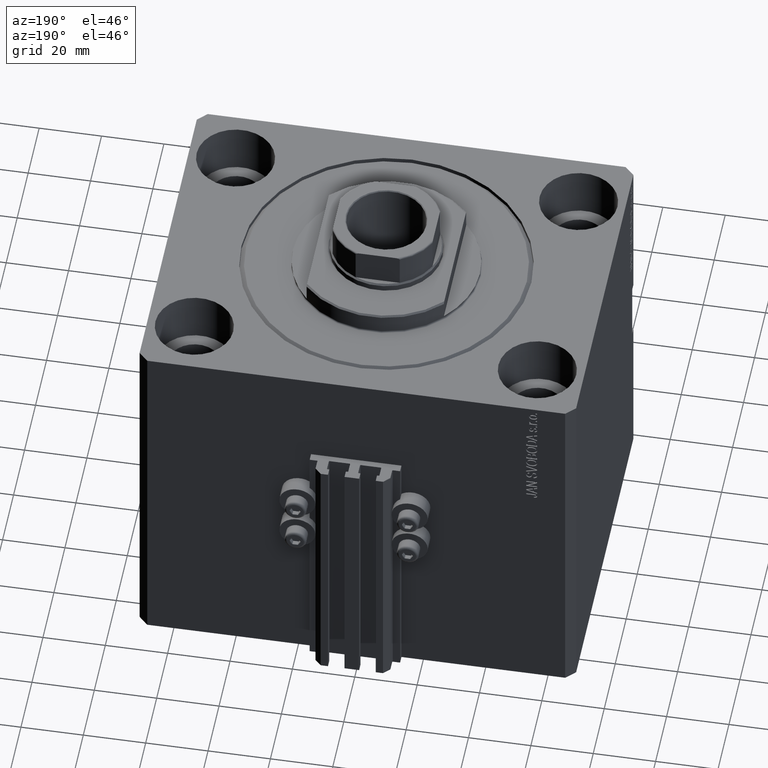
[diagram: clean part render]
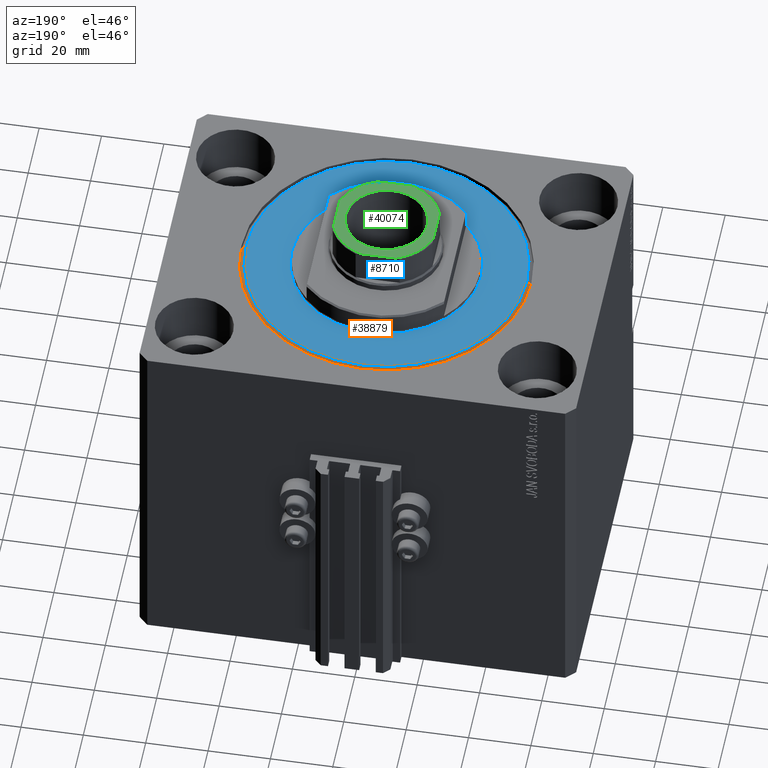
[diagram: same view with three faces highlighted in distinct colors, each labeled with its STEP entity id]
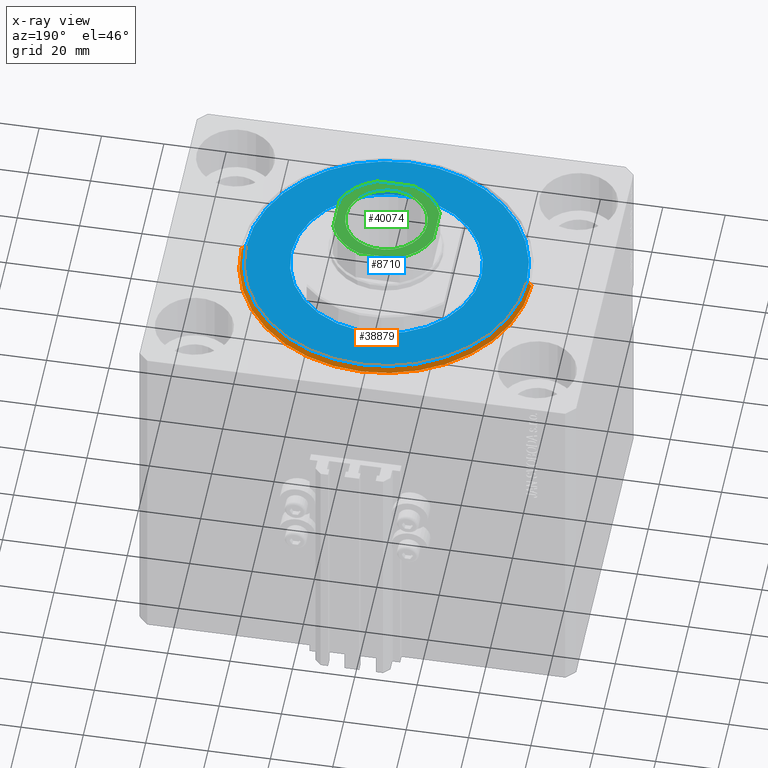
[diagram: x-ray of the same camera — body ghosted, the three highlighted faces saturated]
A machine part, auxiliary view with three faces highlighted in distinct colors.
The next image is the same camera in x-ray (body ghosted, the three faces saturated) — at least one of them is partly hidden behind the body in this view.
Their STEP definitions:

[orange] entity #38879 — the highlighted conical surface has half-angle 45 deg.
#905 = LINE ( 'NONE', #30507, #6513 ) ;
#1716 = DIRECTION ( 'NONE',  ( -0.000000000000000000, -0.000000000000000000, -1.000000000000000000 ) ) ;
#2038 = EDGE_CURVE ( 'NONE', #32870, #5762, #33444, .T. ) ;
#2782 = ORIENTED_EDGE ( 'NONE', *, *, #18228, .F. ) ;
#3310 = CARTESIAN_POINT ( 'NONE',  ( 45.00000000000000000, 0.000000000000000000, 0.000000000000000000 ) ) ;
#3657 = CARTESIAN_POINT ( 'NONE',  ( 0.000000000000000000, 0.000000000000000000, 1.499999999999980460 ) ) ;
#3722 = EDGE_CURVE ( 'NONE', #5762, #9572, #905, .T. ) ;
#4486 = ORIENTED_EDGE ( 'NONE', *, *, #44856, .T. ) ;
#5762 = VERTEX_POINT ( 'NONE', #3310 ) ;
#5881 = CARTESIAN_POINT ( 'NONE',  ( 0.000000000000000000, 0.000000000000000000, 0.000000000000000000 ) ) ;
#6513 = VECTOR ( 'NONE', #19411, 1000.000000000000114 ) ;
#7826 = DIRECTION ( 'NONE',  ( -0.000000000000000000, -0.000000000000000000, 1.000000000000000000 ) ) ;
#8217 = AXIS2_PLACEMENT_3D ( 'NONE', #5881, #1716, #20945 ) ;
#9572 = VERTEX_POINT ( 'NONE', #15655 ) ;
#10188 = FACE_OUTER_BOUND ( 'NONE', #32506, .T. ) ;
#10656 = CARTESIAN_POINT ( 'NONE',  ( -46.50000000000000000, 5.694607616035192278E-15, 1.499999999999980460 ) ) ;
#14849 = DIRECTION ( 'NONE',  ( 1.000000000000000000, 0.000000000000000000, 0.000000000000000000 ) ) ;
#15655 = CARTESIAN_POINT ( 'NONE',  ( 46.50000000000000000, 5.694607616035192278E-15, 1.499999999999980460 ) ) ;
#17582 = DIRECTION ( 'NONE',  ( -0.000000000000000000, -0.000000000000000000, 1.000000000000000000 ) ) ;
#18054 = DIRECTION ( 'NONE',  ( -0.7071067811865524577, 8.659560562354993255E-17, 0.7071067811865425767 ) ) ;
#18228 = EDGE_CURVE ( 'NONE', #9572, #18738, #42309, .T. ) ;
#18738 = VERTEX_POINT ( 'NONE', #21562 ) ;
#19411 = DIRECTION ( 'NONE',  ( 0.7071067811865524577, 0.000000000000000000, 0.7071067811865425767 ) ) ;
#20945 = DIRECTION ( 'NONE',  ( 1.000000000000000000, 0.000000000000000000, 0.000000000000000000 ) ) ;
#21510 = LINE ( 'NONE', #10656, #46586 ) ;
#21562 = CARTESIAN_POINT ( 'NONE',  ( -46.50000000000000000, 0.000000000000000000, 1.499999999999980460 ) ) ;
#27647 = ORIENTED_EDGE ( 'NONE', *, *, #3722, .F. ) ;
#30507 = CARTESIAN_POINT ( 'NONE',  ( 46.50000000000000000, 0.000000000000000000, 1.499999999999980460 ) ) ;
#31723 = ORIENTED_EDGE ( 'NONE', *, *, #2038, .F. ) ;
#32506 = EDGE_LOOP ( 'NONE', ( #31723, #4486, #2782, #27647 ) ) ;
#32868 = CARTESIAN_POINT ( 'NONE',  ( 0.000000000000000000, 0.000000000000000000, 1.499999999999980460 ) ) ;
#32870 = VERTEX_POINT ( 'NONE', #45886 ) ;
#33151 = CONICAL_SURFACE ( 'NONE', #48015, 46.50000000000000000, 0.7853981633974552734 ) ;
#33444 = CIRCLE ( 'NONE', #8217, 45.00000000000000000 ) ;
#33743 = DIRECTION ( 'NONE',  ( 1.000000000000000000, 0.000000000000000000, 0.000000000000000000 ) ) ;
#38879 = ADVANCED_FACE ( 'NONE', ( #10188 ), #33151, .T. ) ;
#42309 = CIRCLE ( 'NONE', #43916, 46.50000000000000000 ) ;
#43916 = AXIS2_PLACEMENT_3D ( 'NONE', #3657, #7826, #33743 ) ;
#44856 = EDGE_CURVE ( 'NONE', #32870, #18738, #21510, .T. ) ;
#45886 = CARTESIAN_POINT ( 'NONE',  ( -45.00000000000000000, 5.602759106099140917E-15, 0.000000000000000000 ) ) ;
#46586 = VECTOR ( 'NONE', #18054, 1000.000000000000114 ) ;
#48015 = AXIS2_PLACEMENT_3D ( 'NONE', #32868, #17582, #14849 ) ;

[blue] entity #8710 — the highlighted planar face has unit normal (0, 0, -1).
#957 = CARTESIAN_POINT ( 'NONE',  ( 0.000000000000000000, 0.000000000000000000, 0.000000000000000000 ) ) ;
#1082 = AXIS2_PLACEMENT_3D ( 'NONE', #33672, #30687, #11233 ) ;
#1192 = EDGE_CURVE ( 'NONE', #16731, #24366, #22359, .T. ) ;
#1716 = DIRECTION ( 'NONE',  ( -0.000000000000000000, -0.000000000000000000, -1.000000000000000000 ) ) ;
#2038 = EDGE_CURVE ( 'NONE', #32870, #5762, #33444, .T. ) ;
#2425 = EDGE_LOOP ( 'NONE', ( #4416, #16897 ) ) ;
#3310 = CARTESIAN_POINT ( 'NONE',  ( 45.00000000000000000, 0.000000000000000000, 0.000000000000000000 ) ) ;
#3574 = DIRECTION ( 'NONE',  ( 1.000000000000000000, 0.000000000000000000, 0.000000000000000000 ) ) ;
#4416 = ORIENTED_EDGE ( 'NONE', *, *, #38634, .T. ) ;
#5762 = VERTEX_POINT ( 'NONE', #3310 ) ;
#5881 = CARTESIAN_POINT ( 'NONE',  ( 0.000000000000000000, 0.000000000000000000, 0.000000000000000000 ) ) ;
#6119 = CIRCLE ( 'NONE', #36077, 45.00000000000000000 ) ;
#7198 = CARTESIAN_POINT ( 'NONE',  ( 0.000000000000000000, 0.000000000000000000, 0.000000000000000000 ) ) ;
#8217 = AXIS2_PLACEMENT_3D ( 'NONE', #5881, #1716, #20945 ) ;
#8710 = ADVANCED_FACE ( 'NONE', ( #19045, #14610 ), #41006, .F. ) ;
#11233 = DIRECTION ( 'NONE',  ( 1.000000000000000000, 0.000000000000000000, 0.000000000000000000 ) ) ;
#12923 = EDGE_LOOP ( 'NONE', ( #16552, #39184 ) ) ;
#14610 = FACE_OUTER_BOUND ( 'NONE', #12923, .T. ) ;
#16552 = ORIENTED_EDGE ( 'NONE', *, *, #31461, .T. ) ;
#16731 = VERTEX_POINT ( 'NONE', #41099 ) ;
#16897 = ORIENTED_EDGE ( 'NONE', *, *, #1192, .T. ) ;
#19045 = FACE_BOUND ( 'NONE', #2425, .T. ) ;
#19466 = DIRECTION ( 'NONE',  ( 1.000000000000000000, 0.000000000000000000, 0.000000000000000000 ) ) ;
#20945 = DIRECTION ( 'NONE',  ( 1.000000000000000000, 0.000000000000000000, 0.000000000000000000 ) ) ;
#22088 = CIRCLE ( 'NONE', #29976, 30.50000000000000000 ) ;
#22256 = DIRECTION ( 'NONE',  ( 1.000000000000000000, 0.000000000000000000, -0.000000000000000000 ) ) ;
#22359 = CIRCLE ( 'NONE', #1082, 30.50000000000000000 ) ;
#24366 = VERTEX_POINT ( 'NONE', #39497 ) ;
#29976 = AXIS2_PLACEMENT_3D ( 'NONE', #33178, #33416, #3574 ) ;
#30687 = DIRECTION ( 'NONE',  ( 0.000000000000000000, 0.000000000000000000, 1.000000000000000000 ) ) ;
#31461 = EDGE_CURVE ( 'NONE', #5762, #32870, #6119, .T. ) ;
#32870 = VERTEX_POINT ( 'NONE', #45886 ) ;
#33178 = CARTESIAN_POINT ( 'NONE',  ( 0.000000000000000000, 0.000000000000000000, 0.000000000000000000 ) ) ;
#33416 = DIRECTION ( 'NONE',  ( 0.000000000000000000, 0.000000000000000000, 1.000000000000000000 ) ) ;
#33444 = CIRCLE ( 'NONE', #8217, 45.00000000000000000 ) ;
#33672 = CARTESIAN_POINT ( 'NONE',  ( 0.000000000000000000, 0.000000000000000000, 0.000000000000000000 ) ) ;
#36077 = AXIS2_PLACEMENT_3D ( 'NONE', #957, #42160, #19466 ) ;
#36829 = DIRECTION ( 'NONE',  ( 0.000000000000000000, 0.000000000000000000, 1.000000000000000000 ) ) ;
#38634 = EDGE_CURVE ( 'NONE', #24366, #16731, #22088, .T. ) ;
#39184 = ORIENTED_EDGE ( 'NONE', *, *, #2038, .T. ) ;
#39497 = CARTESIAN_POINT ( 'NONE',  ( 30.50000000000000000, 0.000000000000000000, 2.168404344971008868E-16 ) ) ;
#41006 = PLANE ( 'NONE',  #45263 ) ;
#41099 = CARTESIAN_POINT ( 'NONE',  ( -30.50000000000000000, 3.735172737399427541E-15, 2.168404344971008868E-16 ) ) ;
#42160 = DIRECTION ( 'NONE',  ( -0.000000000000000000, -0.000000000000000000, -1.000000000000000000 ) ) ;
#45263 = AXIS2_PLACEMENT_3D ( 'NONE', #7198, #36829, #22256 ) ;
#45886 = CARTESIAN_POINT ( 'NONE',  ( -45.00000000000000000, 5.602759106099140917E-15, 0.000000000000000000 ) ) ;

[green] entity #40074 — the highlighted planar face has unit normal (0, 0, 1).
#378 = ORIENTED_EDGE ( 'NONE', *, *, #29664, .T. ) ;
#801 = CARTESIAN_POINT ( 'NONE',  ( 5.744562646538024175, -16.00000000000000355, 115.0000000000000000 ) ) ;
#881 = VECTOR ( 'NONE', #38668, 1000.000000000000000 ) ;
#1155 = AXIS2_PLACEMENT_3D ( 'NONE', #38386, #35166, #27262 ) ;
#2109 = EDGE_CURVE ( 'NONE', #11751, #43261, #23971, .T. ) ;
#3411 = CARTESIAN_POINT ( 'NONE',  ( 0.000000000000000000, 0.000000000000000000, 115.0000000000000000 ) ) ;
#3655 = DIRECTION ( 'NONE',  ( 1.000000000000000000, 0.000000000000000000, 0.000000000000000000 ) ) ;
#3855 = VERTEX_POINT ( 'NONE', #43756 ) ;
#4501 = PLANE ( 'NONE',  #40954 ) ;
#5221 = ORIENTED_EDGE ( 'NONE', *, *, #11677, .T. ) ;
#5372 = CARTESIAN_POINT ( 'NONE',  ( 0.000000000000000000, 0.000000000000000000, 115.0000000000000000 ) ) ;
#6019 = DIRECTION ( 'NONE',  ( 1.084202172485504434E-16, -1.000000000000000000, 0.000000000000000000 ) ) ;
#6353 = DIRECTION ( 'NONE',  ( 0.000000000000000000, -0.000000000000000000, -1.000000000000000000 ) ) ;
#6451 = DIRECTION ( 'NONE',  ( 1.000000000000000000, 0.000000000000000000, 0.000000000000000000 ) ) ;
#7179 = AXIS2_PLACEMENT_3D ( 'NONE', #8688, #23496, #13132 ) ;
#8149 = EDGE_CURVE ( 'NONE', #18015, #23361, #45300, .T. ) ;
#8688 = CARTESIAN_POINT ( 'NONE',  ( 0.000000000000000000, 0.000000000000000000, 115.0000000000000000 ) ) ;
#8700 = CIRCLE ( 'NONE', #41010, 17.00000000000000000 ) ;
#9003 = AXIS2_PLACEMENT_3D ( 'NONE', #32268, #6353, #13768 ) ;
#9177 = CARTESIAN_POINT ( 'NONE',  ( 16.00000000000000355, -5.744562646538033057, 115.0000000000000000 ) ) ;
#9314 = DIRECTION ( 'NONE',  ( 1.000000000000000000, 0.000000000000000000, 0.000000000000000000 ) ) ;
#9693 = ORIENTED_EDGE ( 'NONE', *, *, #43862, .T. ) ;
#10409 = CARTESIAN_POINT ( 'NONE',  ( 0.000000000000000000, 0.000000000000000000, 115.0000000000000000 ) ) ;
#10461 = ORIENTED_EDGE ( 'NONE', *, *, #14244, .T. ) ;
#10545 = CARTESIAN_POINT ( 'NONE',  ( -16.00000000000000000, -5.744562646538033945, 115.0000000000000000 ) ) ;
#11230 = DIRECTION ( 'NONE',  ( -1.000000000000000000, -1.084202172485504434E-16, -0.000000000000000000 ) ) ;
#11677 = EDGE_CURVE ( 'NONE', #21512, #42754, #27125, .T. ) ;
#11732 = EDGE_CURVE ( 'NONE', #42754, #21512, #31076, .T. ) ;
#11751 = VERTEX_POINT ( 'NONE', #39674 ) ;
#13132 = DIRECTION ( 'NONE',  ( 1.000000000000000000, 0.000000000000000000, 0.000000000000000000 ) ) ;
#13768 = DIRECTION ( 'NONE',  ( 1.000000000000000000, 0.000000000000000000, 0.000000000000000000 ) ) ;
#14244 = EDGE_CURVE ( 'NONE', #43261, #35530, #36134, .T. ) ;
#14388 = CARTESIAN_POINT ( 'NONE',  ( -15.99999999999999645, -16.00000000000000355, 115.0000000000000000 ) ) ;
#14680 = LINE ( 'NONE', #29724, #18854 ) ;
#14979 = CARTESIAN_POINT ( 'NONE',  ( -13.05000000000003268, 1.598164072887299324E-15, 115.0000000000000000 ) ) ;
#15075 = VERTEX_POINT ( 'NONE', #15101 ) ;
#15101 = CARTESIAN_POINT ( 'NONE',  ( 5.744562646538033057, 16.00000000000000000, 115.0000000000000000 ) ) ;
#15714 = ORIENTED_EDGE ( 'NONE', *, *, #11732, .T. ) ;
#15857 = CARTESIAN_POINT ( 'NONE',  ( 0.000000000000000000, 0.000000000000000000, 115.0000000000000000 ) ) ;
#16447 = CARTESIAN_POINT ( 'NONE',  ( 16.00000000000000000, 16.00000000000000000, 115.0000000000000000 ) ) ;
#17310 = ORIENTED_EDGE ( 'NONE', *, *, #39494, .T. ) ;
#18015 = VERTEX_POINT ( 'NONE', #801 ) ;
#18834 = FACE_BOUND ( 'NONE', #46675, .T. ) ;
#18854 = VECTOR ( 'NONE', #11230, 1000.000000000000000 ) ;
#20179 = DIRECTION ( 'NONE',  ( -0.000000000000000000, 0.000000000000000000, 1.000000000000000000 ) ) ;
#20423 = ORIENTED_EDGE ( 'NONE', *, *, #8149, .T. ) ;
#20842 = CARTESIAN_POINT ( 'NONE',  ( -16.00000000000000000, 15.99999999999999645, 115.0000000000000000 ) ) ;
#21512 = VERTEX_POINT ( 'NONE', #14979 ) ;
#21618 = AXIS2_PLACEMENT_3D ( 'NONE', #10409, #40263, #6451 ) ;
#22035 = LINE ( 'NONE', #14388, #45550 ) ;
#23361 = VERTEX_POINT ( 'NONE', #9177 ) ;
#23496 = DIRECTION ( 'NONE',  ( -0.000000000000000000, 0.000000000000000000, 1.000000000000000000 ) ) ;
#23971 = CIRCLE ( 'NONE', #26317, 17.00000000000000000 ) ;
#24844 = VECTOR ( 'NONE', #6019, 1000.000000000000000 ) ;
#26213 = FACE_OUTER_BOUND ( 'NONE', #26988, .T. ) ;
#26317 = AXIS2_PLACEMENT_3D ( 'NONE', #3411, #37458, #3655 ) ;
#26988 = EDGE_LOOP ( 'NONE', ( #10461, #9693, #36427, #20423, #38690, #378, #17310, #29143 ) ) ;
#27125 = CIRCLE ( 'NONE', #21618, 13.05000000000003268 ) ;
#27262 = DIRECTION ( 'NONE',  ( 1.000000000000000000, 0.000000000000000000, 0.000000000000000000 ) ) ;
#29143 = ORIENTED_EDGE ( 'NONE', *, *, #2109, .T. ) ;
#29664 = EDGE_CURVE ( 'NONE', #3855, #15075, #8700, .T. ) ;
#29724 = CARTESIAN_POINT ( 'NONE',  ( -16.00000000000000000, 15.99999999999999645, 115.0000000000000000 ) ) ;
#30888 = DIRECTION ( 'NONE',  ( -0.000000000000000000, 0.000000000000000000, 1.000000000000000000 ) ) ;
#31076 = CIRCLE ( 'NONE', #9003, 13.05000000000003268 ) ;
#31738 = LINE ( 'NONE', #16447, #881 ) ;
#32268 = CARTESIAN_POINT ( 'NONE',  ( 0.000000000000000000, 0.000000000000000000, 115.0000000000000000 ) ) ;
#32581 = EDGE_CURVE ( 'NONE', #35752, #18015, #22035, .T. ) ;
#34007 = CARTESIAN_POINT ( 'NONE',  ( 13.05000000000003268, 0.000000000000000000, 115.0000000000000000 ) ) ;
#35166 = DIRECTION ( 'NONE',  ( -0.000000000000000000, 0.000000000000000000, 1.000000000000000000 ) ) ;
#35530 = VERTEX_POINT ( 'NONE', #10545 ) ;
#35532 = CIRCLE ( 'NONE', #7179, 17.00000000000000000 ) ;
#35752 = VERTEX_POINT ( 'NONE', #43805 ) ;
#36134 = LINE ( 'NONE', #20842, #24844 ) ;
#36183 = CARTESIAN_POINT ( 'NONE',  ( -16.00000000000000000, 5.744562646538029504, 115.0000000000000000 ) ) ;
#36427 = ORIENTED_EDGE ( 'NONE', *, *, #32581, .T. ) ;
#37458 = DIRECTION ( 'NONE',  ( -0.000000000000000000, 0.000000000000000000, 1.000000000000000000 ) ) ;
#38386 = CARTESIAN_POINT ( 'NONE',  ( 0.000000000000000000, 0.000000000000000000, 115.0000000000000000 ) ) ;
#38668 = DIRECTION ( 'NONE',  ( -1.084202172485504434E-16, 1.000000000000000000, -0.000000000000000000 ) ) ;
#38690 = ORIENTED_EDGE ( 'NONE', *, *, #43142, .T. ) ;
#39494 = EDGE_CURVE ( 'NONE', #15075, #11751, #14680, .T. ) ;
#39674 = CARTESIAN_POINT ( 'NONE',  ( -5.744562646538033945, 16.00000000000000000, 115.0000000000000000 ) ) ;
#40074 = ADVANCED_FACE ( 'NONE', ( #18834, #26213 ), #4501, .T. ) ;
#40263 = DIRECTION ( 'NONE',  ( 0.000000000000000000, -0.000000000000000000, -1.000000000000000000 ) ) ;
#40954 = AXIS2_PLACEMENT_3D ( 'NONE', #15857, #30888, #48687 ) ;
#41010 = AXIS2_PLACEMENT_3D ( 'NONE', #5372, #20179, #9314 ) ;
#42754 = VERTEX_POINT ( 'NONE', #34007 ) ;
#43142 = EDGE_CURVE ( 'NONE', #23361, #3855, #31738, .T. ) ;
#43261 = VERTEX_POINT ( 'NONE', #36183 ) ;
#43756 = CARTESIAN_POINT ( 'NONE',  ( 16.00000000000000000, 5.744562646538033945, 115.0000000000000000 ) ) ;
#43805 = CARTESIAN_POINT ( 'NONE',  ( -5.744562646538029504, -16.00000000000000355, 115.0000000000000000 ) ) ;
#43862 = EDGE_CURVE ( 'NONE', #35530, #35752, #35532, .T. ) ;
#45300 = CIRCLE ( 'NONE', #1155, 17.00000000000000000 ) ;
#45462 = DIRECTION ( 'NONE',  ( 1.000000000000000000, 1.084202172485504434E-16, 0.000000000000000000 ) ) ;
#45550 = VECTOR ( 'NONE', #45462, 1000.000000000000000 ) ;
#46675 = EDGE_LOOP ( 'NONE', ( #15714, #5221 ) ) ;
#48687 = DIRECTION ( 'NONE',  ( 1.000000000000000000, 0.000000000000000000, 0.000000000000000000 ) ) ;